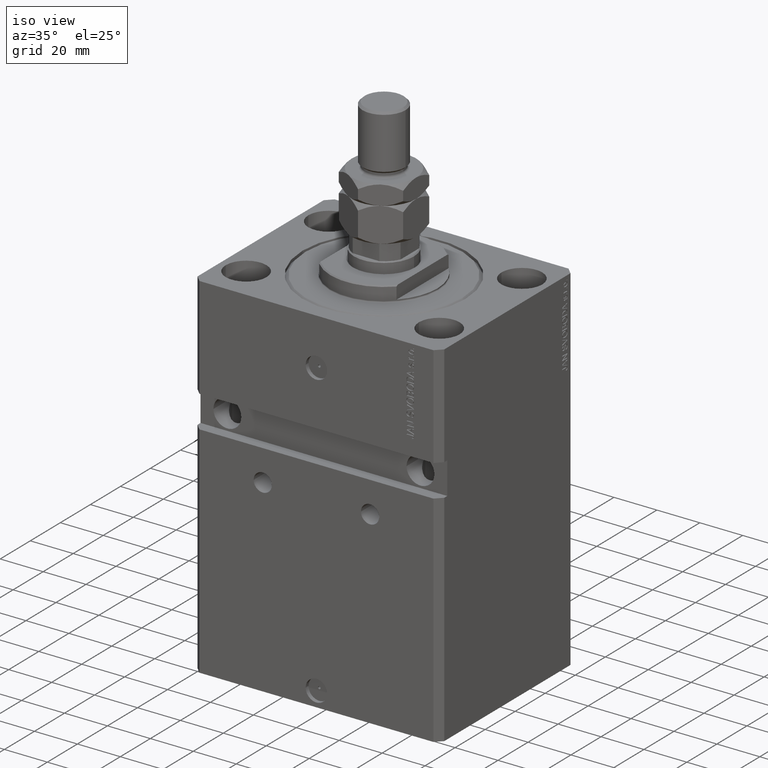
[diagram: clean part render]
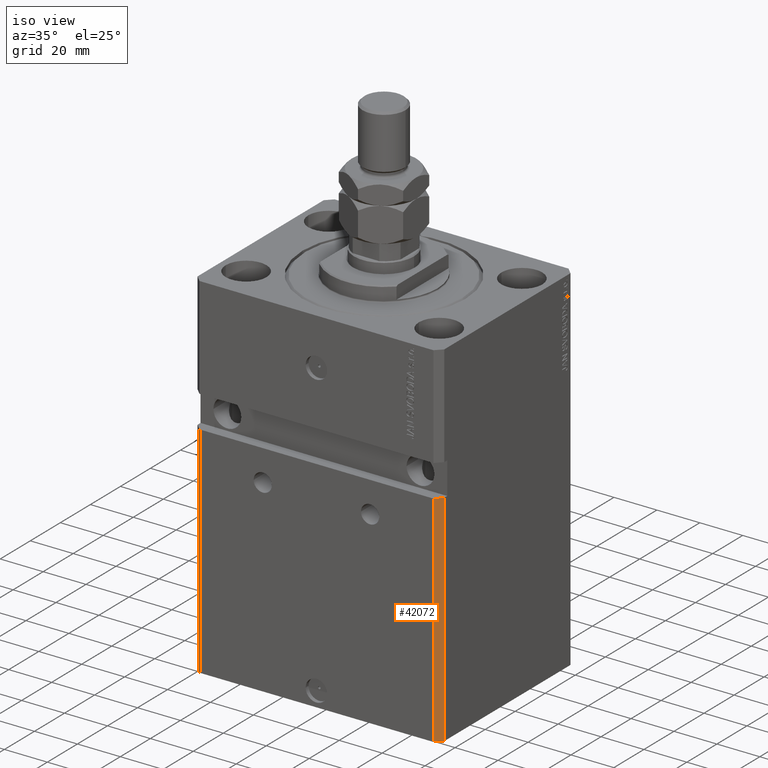
[diagram: same view with one face highlighted and labeled with its STEP entity id]
A machine part, iso view. The second image highlights one B-rep face of the part: STEP entity #42072.
In plain terms, the highlighted planar face has unit normal (0.7071, -0.7071, 0).
Its self-contained STEP definition (entity closure, byte-faithful):
#162 = ORIENTED_EDGE ( 'NONE', *, *, #42110, .T. ) ;
#2005 = CARTESIAN_POINT ( 'NONE',  ( 57.50000000000000711, -41.99999999999998579, -165.0000000000000000 ) ) ;
#2643 = ORIENTED_EDGE ( 'NONE', *, *, #45780, .F. ) ;
#3457 = CARTESIAN_POINT ( 'NONE',  ( 57.50000000000000711, -41.99999999999998579, -62.49999999999999289 ) ) ;
#4665 = CARTESIAN_POINT ( 'NONE',  ( 54.50000000000000711, -44.99999999999998579, -165.0000000000000000 ) ) ;
#7255 = EDGE_CURVE ( 'NONE', #25866, #38897, #34982, .T. ) ;
#9950 = VECTOR ( 'NONE', #20630, 1000.000000000000000 ) ;
#11676 = CARTESIAN_POINT ( 'NONE',  ( 54.50000000000000711, -44.99999999999998579, -165.0000000000000000 ) ) ;
#11796 = VECTOR ( 'NONE', #27258, 1000.000000000000000 ) ;
#13236 = CARTESIAN_POINT ( 'NONE',  ( 54.50000000000000711, -44.99999999999998579, -62.50000000000000000 ) ) ;
#13468 = DIRECTION ( 'NONE',  ( 0.7071067811865483499, 0.7071067811865466846, 4.266555594249393086E-17 ) ) ;
#14456 = VECTOR ( 'NONE', #45226, 1000.000000000000000 ) ;
#15795 = DIRECTION ( 'NONE',  ( 0.7071067811865466846, -0.7071067811865483499, 0.000000000000000000 ) ) ;
#16824 = AXIS2_PLACEMENT_3D ( 'NONE', #4665, #15795, #19451 ) ;
#19451 = DIRECTION ( 'NONE',  ( 0.7071067811865483499, 0.7071067811865466846, 0.000000000000000000 ) ) ;
#19575 = VERTEX_POINT ( 'NONE', #28934 ) ;
#19746 = CARTESIAN_POINT ( 'NONE',  ( 54.50000000000000711, -44.99999999999998579, -165.0000000000000000 ) ) ;
#20274 = EDGE_LOOP ( 'NONE', ( #2643, #36769, #162, #20803 ) ) ;
#20630 = DIRECTION ( 'NONE',  ( 0.000000000000000000, 0.000000000000000000, 1.000000000000000000 ) ) ;
#20803 = ORIENTED_EDGE ( 'NONE', *, *, #25040, .T. ) ;
#21488 = VECTOR ( 'NONE', #13468, 1000.000000000000000 ) ;
#22381 = PLANE ( 'NONE',  #16824 ) ;
#25040 = EDGE_CURVE ( 'NONE', #19575, #26656, #46010, .T. ) ;
#25866 = VERTEX_POINT ( 'NONE', #19746 ) ;
#26656 = VERTEX_POINT ( 'NONE', #3457 ) ;
#27258 = DIRECTION ( 'NONE',  ( 0.000000000000000000, 0.000000000000000000, 1.000000000000000000 ) ) ;
#27888 = CARTESIAN_POINT ( 'NONE',  ( 54.50000000000000711, -44.99999999999998579, -62.49999999999999289 ) ) ;
#28934 = CARTESIAN_POINT ( 'NONE',  ( 57.50000000000000711, -41.99999999999998579, -165.0000000000000000 ) ) ;
#30370 = FACE_OUTER_BOUND ( 'NONE', #20274, .T. ) ;
#34982 = LINE ( 'NONE', #42775, #9950 ) ;
#35838 = LINE ( 'NONE', #13236, #21488 ) ;
#36769 = ORIENTED_EDGE ( 'NONE', *, *, #7255, .F. ) ;
#37426 = LINE ( 'NONE', #11676, #14456 ) ;
#38897 = VERTEX_POINT ( 'NONE', #27888 ) ;
#42072 = ADVANCED_FACE ( 'NONE', ( #30370 ), #22381, .T. ) ;
#42110 = EDGE_CURVE ( 'NONE', #25866, #19575, #37426, .T. ) ;
#42775 = CARTESIAN_POINT ( 'NONE',  ( 54.50000000000000711, -44.99999999999998579, -165.0000000000000000 ) ) ;
#45226 = DIRECTION ( 'NONE',  ( 0.7071067811865483499, 0.7071067811865466846, 0.000000000000000000 ) ) ;
#45780 = EDGE_CURVE ( 'NONE', #38897, #26656, #35838, .T. ) ;
#46010 = LINE ( 'NONE', #2005, #11796 ) ;